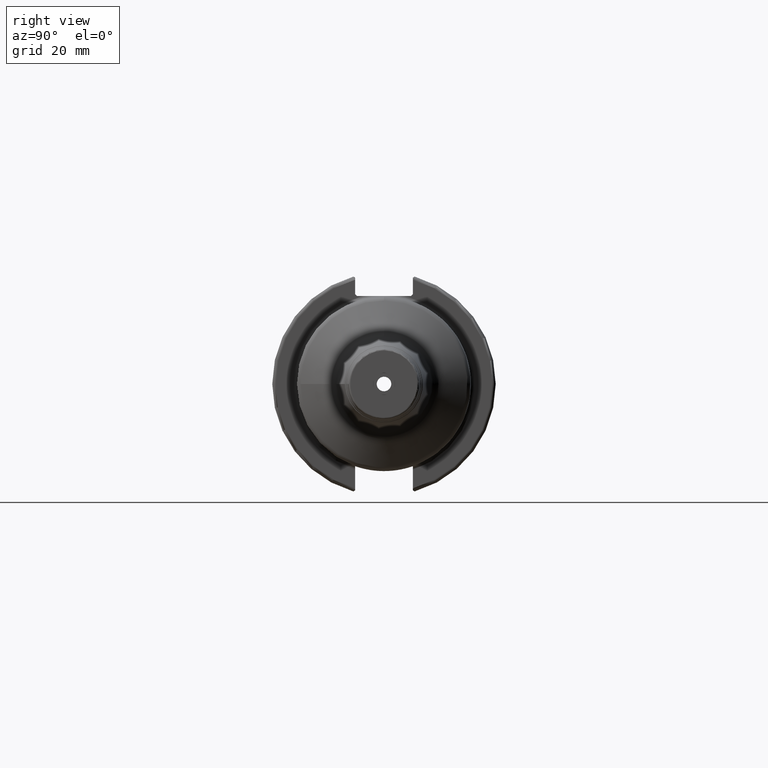
[diagram: clean part render]
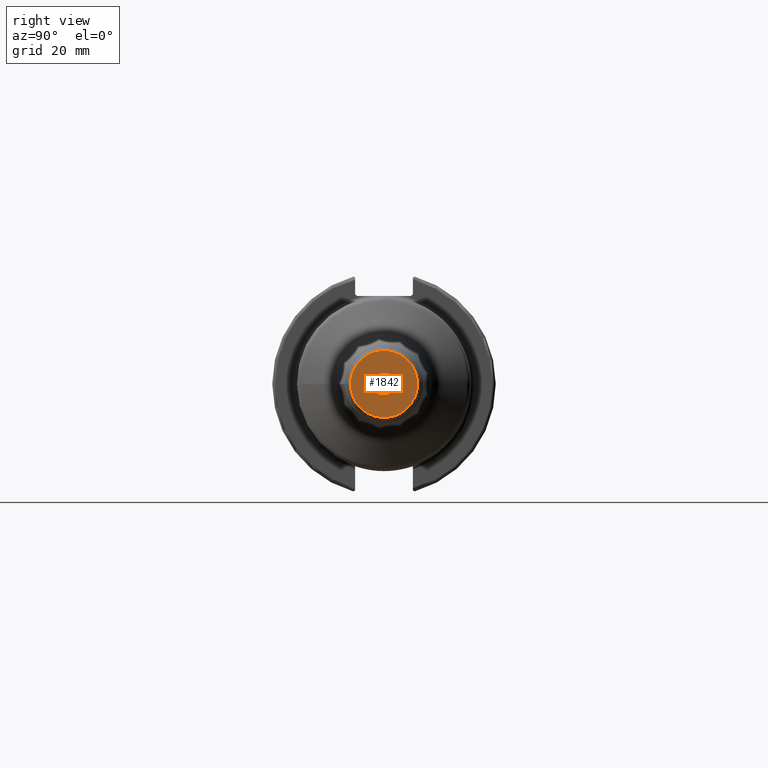
[diagram: same view with one face highlighted and labeled with its STEP entity id]
A machine part, right view. The second image highlights one B-rep face of the part: STEP entity #1842.
In plain terms, the highlighted planar face has unit normal (1, 0, 0).
Its self-contained STEP definition (entity closure, byte-faithful):
#49=PLANE('',#2000);
#105=FACE_BOUND('',#307,.T.);
#197=FACE_OUTER_BOUND('',#306,.T.);
#306=EDGE_LOOP('',(#1292));
#307=EDGE_LOOP('',(#1293));
#631=CIRCLE('',#1993,9.52551771664256);
#637=CIRCLE('',#2001,3.175);
#760=VERTEX_POINT('',#2970);
#765=VERTEX_POINT('',#2984);
#964=EDGE_CURVE('',#760,#760,#631,.T.);
#971=EDGE_CURVE('',#765,#765,#637,.T.);
#1292=ORIENTED_EDGE('',*,*,#964,.F.);
#1293=ORIENTED_EDGE('',*,*,#971,.F.);
#1842=ADVANCED_FACE('',(#197,#105),#49,.T.);
#1993=AXIS2_PLACEMENT_3D('',#2971,#2289,#2290);
#2000=AXIS2_PLACEMENT_3D('',#2983,#2304,#2305);
#2001=AXIS2_PLACEMENT_3D('',#2985,#2306,#2307);
#2289=DIRECTION('center_axis',(-1.,0.,0.));
#2290=DIRECTION('ref_axis',(0.,-1.,1.83697019872103E-16));
#2304=DIRECTION('center_axis',(1.,0.,0.));
#2305=DIRECTION('ref_axis',(0.,0.,-1.));
#2306=DIRECTION('center_axis',(1.,0.,0.));
#2307=DIRECTION('ref_axis',(0.,0.,-1.));
#2970=CARTESIAN_POINT('',(120.,-1.16653947819077E-15,9.52551771664256));
#2971=CARTESIAN_POINT('Origin',(120.,0.,0.));
#2983=CARTESIAN_POINT('Origin',(120.,3.175,0.));
#2984=CARTESIAN_POINT('',(120.,-3.175,-3.88825358729285E-16));
#2985=CARTESIAN_POINT('Origin',(120.,0.,0.));